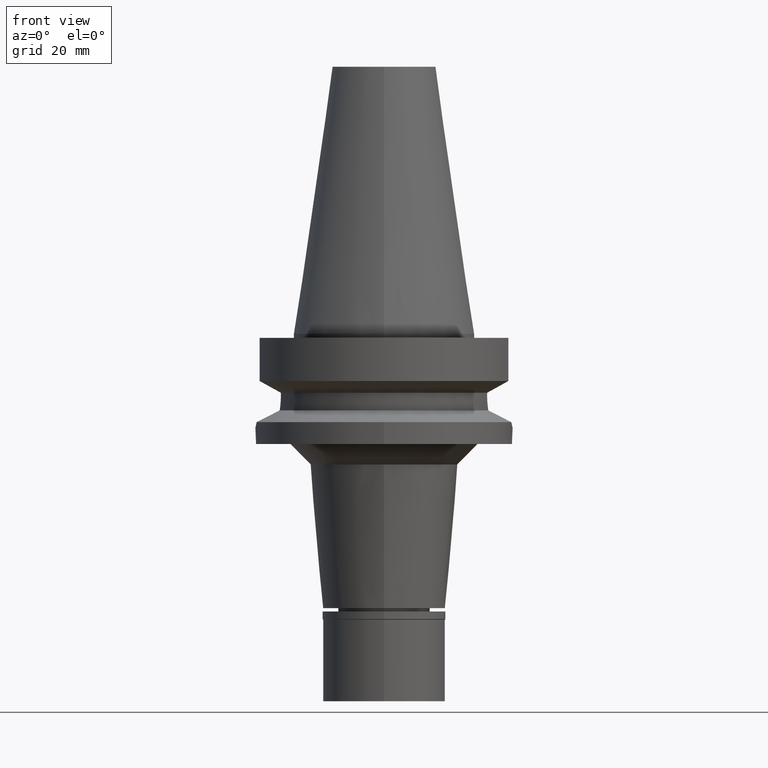
[diagram: clean part render]
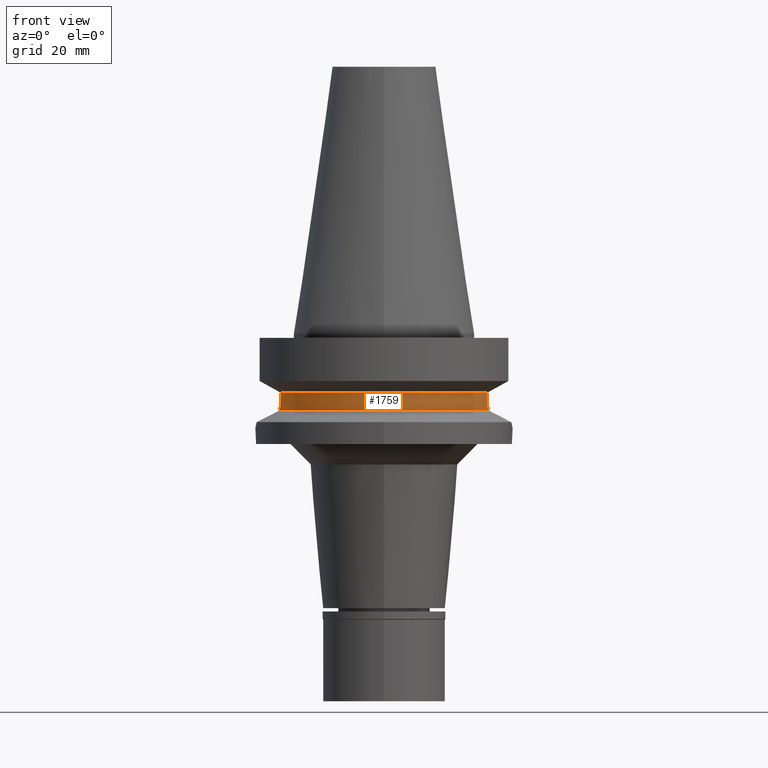
[diagram: same view with one face highlighted and labeled with its STEP entity id]
A machine part, front view. The second image highlights one B-rep face of the part: STEP entity #1759.
In plain terms, the highlighted cylindrical surface (partial cylindrical patch) has radius 26.5 mm, axis along (0, 0, -1).
Its self-contained STEP definition (entity closure, byte-faithful):
#22 = CARTESIAN_POINT ( 'NONE',  ( 0.0000000000000000000, 0.0000000000000000000, -18.74774300138999905 ) ) ;
#87 = AXIS2_PLACEMENT_3D ( 'NONE', #2078, #2347, #1145 ) ;
#159 = CARTESIAN_POINT ( 'NONE',  ( -25.24772266958000344, -8.050000000000000711, -14.94999999999999929 ) ) ;
#172 = CARTESIAN_POINT ( 'NONE',  ( 25.32118155423751560, -7.816096717212926315, -16.87652453452369627 ) ) ;
#177 = CARTESIAN_POINT ( 'NONE',  ( -25.27269391207093463, -7.973288729731969227, -16.24537813257547469 ) ) ;
#206 = VERTEX_POINT ( 'NONE', #2279 ) ;
#259 = CARTESIAN_POINT ( 'NONE',  ( 0.0000000000000000000, 1.065333950388000029E-14, -14.45225699861000024 ) ) ;
#264 = VERTEX_POINT ( 'NONE', #866 ) ;
#353 = FACE_OUTER_BOUND ( 'NONE', #2143, .T. ) ;
#362 = VERTEX_POINT ( 'NONE', #1276 ) ;
#448 = CARTESIAN_POINT ( 'NONE',  ( 25.24772266958000699, -8.050000000000000711, -15.26991324108734283 ) ) ;
#547 = CIRCLE ( 'NONE', #1477, 26.50000000000000711 ) ;
#609 = CARTESIAN_POINT ( 'NONE',  ( -25.32844777903620681, -7.792527725354012169, -16.96974754110893002 ) ) ;
#623 = CARTESIAN_POINT ( 'NONE',  ( -25.32419709970849553, -7.806318959900105270, -16.91578803901766292 ) ) ;
#632 = CARTESIAN_POINT ( 'NONE',  ( 25.31202572170775866, -7.845729406580135290, -16.75279821057739582 ) ) ;
#635 = ORIENTED_EDGE ( 'NONE', *, *, #773, .T. ) ;
#645 = CARTESIAN_POINT ( 'NONE',  ( -25.24772266958000344, -8.050000000000000711, -14.94999999999999929 ) ) ;
#667 = VERTEX_POINT ( 'NONE', #159 ) ;
#714 = DIRECTION ( 'NONE',  ( 0.9527442516822307583, -0.3037735849057093818, 0.0000000000000000000 ) ) ;
#757 = EDGE_CURVE ( 'NONE', #206, #264, #2675, .T. ) ;
#773 = EDGE_CURVE ( 'NONE', #2160, #1390, #547, .T. ) ;
#860 = VECTOR ( 'NONE', #2200, 1000.000000000000000 ) ;
#864 = CARTESIAN_POINT ( 'NONE',  ( 25.25396284446427231, -8.030907492774097989, -15.59360398733918451 ) ) ;
#866 = CARTESIAN_POINT ( 'NONE',  ( 25.53175183775000079, -7.097862220092999941, -18.74774300138999905 ) ) ;
#872 = CARTESIAN_POINT ( 'NONE',  ( -25.32550670071061916, -7.802071535306239092, -16.93256103013014169 ) ) ;
#881 = CARTESIAN_POINT ( 'NONE',  ( 25.28048358772242565, -7.947040743794929085, -16.24400980664070460 ) ) ;
#886 = CARTESIAN_POINT ( 'NONE',  ( -25.48482038766596958, -7.266679548433801372, -18.43222872448819771 ) ) ;
#967 = CARTESIAN_POINT ( 'NONE',  ( 25.53175183775000079, -7.097862220092999941, -18.74774300138999905 ) ) ;
#1018 = CARTESIAN_POINT ( 'NONE',  ( 25.24772266958000344, -8.050000000000000711, -14.45225699861000024 ) ) ;
#1101 = LINE ( 'NONE', #2112, #1160 ) ;
#1144 = ORIENTED_EDGE ( 'NONE', *, *, #1345, .T. ) ;
#1145 = DIRECTION ( 'NONE',  ( 0.0000000000000000000, -1.000000000000000000, 0.0000000000000000000 ) ) ;
#1160 = VECTOR ( 'NONE', #1900, 1000.000000000000000 ) ;
#1180 = EDGE_CURVE ( 'NONE', #2160, #206, #1101, .T. ) ;
#1276 = CARTESIAN_POINT ( 'NONE',  ( -25.53175183775000079, -7.097862220092999941, -18.74774300138999905 ) ) ;
#1345 = EDGE_CURVE ( 'NONE', #362, #264, #2267, .T. ) ;
#1390 = VERTEX_POINT ( 'NONE', #2938 ) ;
#1394 = CARTESIAN_POINT ( 'NONE',  ( 25.31950905643225980, -7.821515286679934675, -16.85442525727312812 ) ) ;
#1426 = DIRECTION ( 'NONE',  ( -0.9634623335000935818, -0.2678438573619981722, 0.0000000000000000000 ) ) ;
#1477 = AXIS2_PLACEMENT_3D ( 'NONE', #259, #2899, #714 ) ;
#1598 = CARTESIAN_POINT ( 'NONE',  ( -25.24772266957999989, -8.049999999999981171, -15.58999736273363546 ) ) ;
#1612 = CARTESIAN_POINT ( 'NONE',  ( -25.33293017119236268, -7.777974374871634566, -17.02562462713753177 ) ) ;
#1638 = CARTESIAN_POINT ( 'NONE',  ( 25.24772266958000344, -8.050000000000000711, -14.94999999999999929 ) ) ;
#1670 = ORIENTED_EDGE ( 'NONE', *, *, #1180, .F. ) ;
#1693 = LINE ( 'NONE', #2694, #860 ) ;
#1725 = DIRECTION ( 'NONE',  ( 0.0000000000000000000, 0.0000000000000000000, 1.000000000000000000 ) ) ;
#1743 = EDGE_CURVE ( 'NONE', #362, #667, #2840, .T. ) ;
#1759 = ADVANCED_FACE ( 'NONE', ( #353 ), #1843, .T. ) ;
#1843 = CYLINDRICAL_SURFACE ( 'NONE', #87, 26.50000000000000000 ) ;
#1852 = CARTESIAN_POINT ( 'NONE',  ( 25.29452398121202350, -7.902090651792934572, -16.48828405102940664 ) ) ;
#1862 = CARTESIAN_POINT ( 'NONE',  ( -25.39164951572487183, -7.584807667336966652, -17.65197957159458753 ) ) ;
#1900 = DIRECTION ( 'NONE',  ( 1.014171168404026017E-06, 3.180810831124084936E-06, -0.9999999999944269025 ) ) ;
#2078 = CARTESIAN_POINT ( 'NONE',  ( 0.0000000000000000000, 2.116618295306000150E-14, 72.83499999999999375 ) ) ;
#2112 = CARTESIAN_POINT ( 'NONE',  ( 25.24772216476999986, -8.050001583265000704, -14.45224490106999937 ) ) ;
#2143 = EDGE_LOOP ( 'NONE', ( #2469, #1144, #2537, #1670, #635, #2875 ) ) ;
#2160 = VERTEX_POINT ( 'NONE', #1018 ) ;
#2177 = CARTESIAN_POINT ( 'NONE',  ( 25.43786330456364553, -7.435589081429987424, -18.11654211998960662 ) ) ;
#2200 = DIRECTION ( 'NONE',  ( -2.938661411159025580E-06, 9.216714892034072337E-06, 0.9999999999532082073 ) ) ;
#2267 = CIRCLE ( 'NONE', #2776, 26.49999999999998224 ) ;
#2279 = CARTESIAN_POINT ( 'NONE',  ( 25.24772266958000344, -8.050000000000000711, -14.94999999999999929 ) ) ;
#2299 = CARTESIAN_POINT ( 'NONE',  ( -25.44392837589916567, -7.408239565059886900, -18.11709494172728796 ) ) ;
#2347 = DIRECTION ( 'NONE',  ( 0.0000000000000000000, 0.0000000000000000000, -1.000000000000000000 ) ) ;
#2360 = CARTESIAN_POINT ( 'NONE',  ( -25.53175183775000079, -7.097862220092999941, -18.74774300138999905 ) ) ;
#2469 = ORIENTED_EDGE ( 'NONE', *, *, #1743, .F. ) ;
#2537 = ORIENTED_EDGE ( 'NONE', *, *, #757, .F. ) ;
#2538 = CARTESIAN_POINT ( 'NONE',  ( -25.34388450889784750, -7.742333382928174856, -17.15666984720027344 ) ) ;
#2594 = CARTESIAN_POINT ( 'NONE',  ( -25.37573308857942322, -7.637710303739487117, -17.49818662950802306 ) ) ;
#2601 = CARTESIAN_POINT ( 'NONE',  ( 25.31648647172268340, -7.831300037042765894, -16.81378020971403231 ) ) ;
#2675 = B_SPLINE_CURVE_WITH_KNOTS ( 'NONE', 3,
 ( #1638, #448, #864, #2801, #881, #1852, #2815, #632, #2601, #1394, #172, #3142, #2177, #967 ),
 .UNSPECIFIED., .F., .F.,
 ( 4, 2, 2, 1, 1, 2, 2, 4 ),
 ( 0.0000000000000000000, 0.2499999999999888978, 0.3749999999999832911, 0.4374999999999816813, 0.4687499999999808487, 0.4843749999999804046, 0.4999999999999800160, 1.000000000000000000 ),
 .UNSPECIFIED. ) ;
#2694 = CARTESIAN_POINT ( 'NONE',  ( -25.24772266958000344, -8.050000000000000711, -14.94999999999999929 ) ) ;
#2776 = AXIS2_PLACEMENT_3D ( 'NONE', #22, #1725, #1426 ) ;
#2801 = CARTESIAN_POINT ( 'NONE',  ( 25.27268336911707891, -7.971811480182260823, -16.08115959834935182 ) ) ;
#2815 = CARTESIAN_POINT ( 'NONE',  ( 25.30212919435223284, -7.877667573970344783, -16.61042047323939741 ) ) ;
#2825 = CARTESIAN_POINT ( 'NONE',  ( -25.35412323723021544, -7.708830947932238331, -17.27007949472962878 ) ) ;
#2840 = B_SPLINE_CURVE_WITH_KNOTS ( 'NONE', 3,
 ( #2360, #886, #2299, #1862, #2594, #2825, #2538, #1612, #609, #872, #623, #177, #1598, #645 ),
 .UNSPECIFIED., .F., .F.,
 ( 4, 2, 2, 1, 1, 2, 2, 4 ),
 ( 0.0000000000000000000, 0.2500000000000041078, 0.3750000000000073830, 0.4375000000000078826, 0.4687500000000093259, 0.4843750000000099365, 0.5000000000000105471, 1.000000000000000000 ),
 .UNSPECIFIED. ) ;
#2875 = ORIENTED_EDGE ( 'NONE', *, *, #3040, .F. ) ;
#2899 = DIRECTION ( 'NONE',  ( 0.0000000000000000000, 0.0000000000000000000, -1.000000000000000000 ) ) ;
#2938 = CARTESIAN_POINT ( 'NONE',  ( -25.24772413216999922, -8.049995412768000236, -14.45229205104999970 ) ) ;
#3040 = EDGE_CURVE ( 'NONE', #667, #1390, #1693, .T. ) ;
#3142 = CARTESIAN_POINT ( 'NONE',  ( 25.36814761471071833, -7.663830712965396863, -17.48803584493440155 ) ) ;